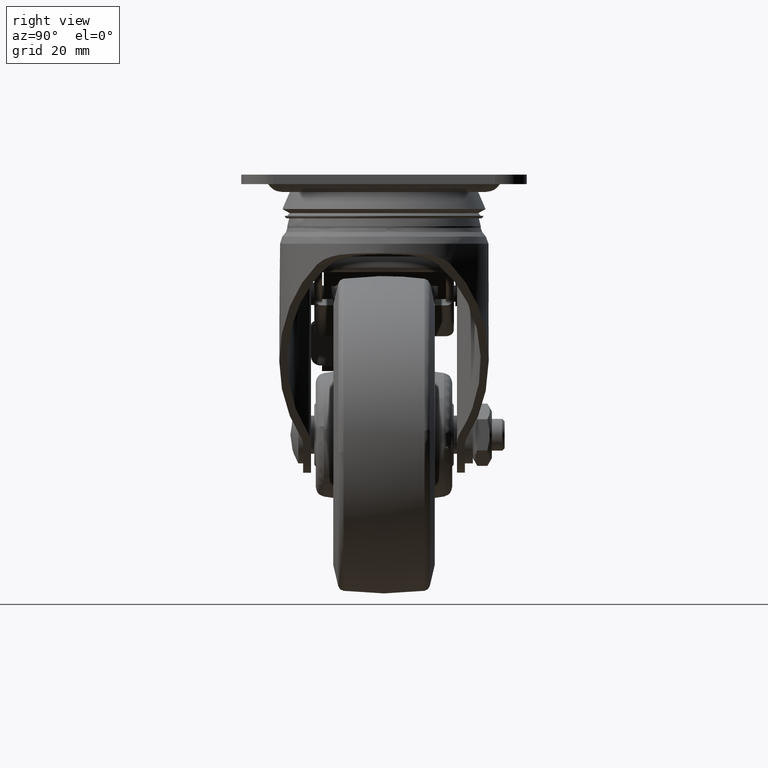
[diagram: clean part render]
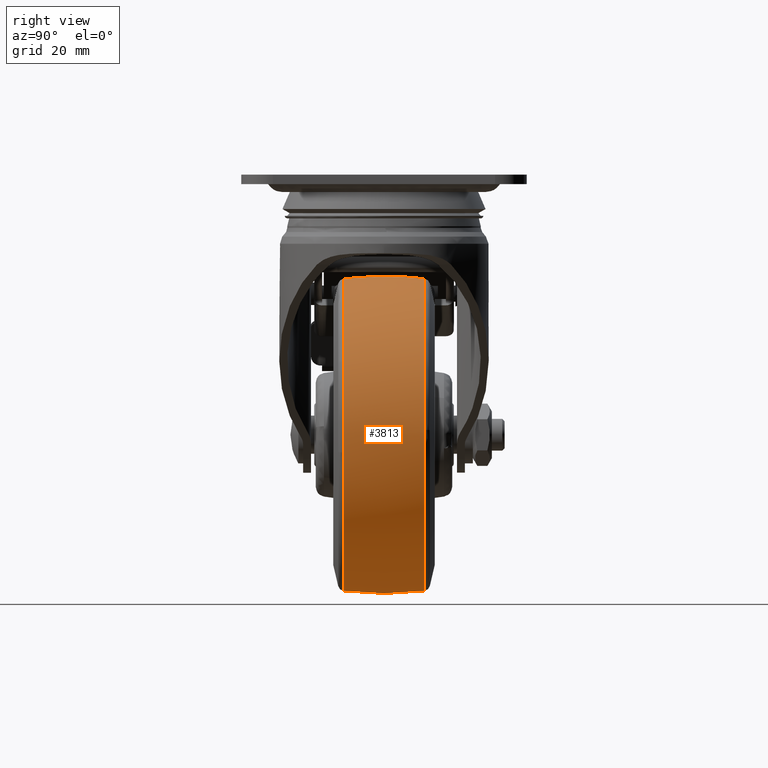
[diagram: same view with one face highlighted and labeled with its STEP entity id]
A machine part, right view. The second image highlights one B-rep face of the part: STEP entity #3813.
In plain terms, the highlighted face is a freeform B-spline surface patch.
Its self-contained STEP definition (entity closure, byte-faithful):
#1713=CARTESIAN_POINT('',(14.159964738544550,12.755098102477019,-80.488308676891052));
#1714=VERTEX_POINT('',#1713);
#1715=CARTESIAN_POINT('',(-35.0,12.755094337561159,-32.816812952274823));
#1716=VERTEX_POINT('',#1715);
#1717=CARTESIAN_POINT('',(14.159964738544550,12.755098102477019,-80.488308676891052));
#1718=CARTESIAN_POINT('',(14.102411787843010,12.755097957589999,-78.615299976082625));
#1719=CARTESIAN_POINT('',(13.781498798500920,12.755097675599989,-74.974289152511673));
#1720=CARTESIAN_POINT('',(12.608955161024840,12.755097224625141,-69.165189786163936));
#1721=CARTESIAN_POINT('',(10.854234440465820,12.755096815862951,-63.914338089447213));
#1722=CARTESIAN_POINT('',(8.515227129443144,12.755096424807970,-58.904798102806247));
#1723=CARTESIAN_POINT('',(5.538893323533679,12.755096032677431,-53.894688923472458));
#1724=CARTESIAN_POINT('',(1.063366380073345,12.755095587277280,-48.226932670077836));
#1725=CARTESIAN_POINT('',(-4.581838673213142,12.755095182104769,-43.104055209906512));
#1726=CARTESIAN_POINT('',(-10.603385661594860,12.755094865024780,-39.128607192664262));
#1727=CARTESIAN_POINT('',(-16.296261336436231,12.755094642568080,-36.370290060114577));
#1728=CARTESIAN_POINT('',(-22.476304271612111,12.755094471652519,-34.288900854245291));
#1729=CARTESIAN_POINT('',(-28.687927383509741,12.755094367989940,-33.078135048424670));
#1730=CARTESIAN_POINT('',(-33.027480135347759,12.755094340753789,-32.816775595635953));
#1731=CARTESIAN_POINT('',(-35.0,12.755094337561159,-32.816812952274823));
#1732=B_SPLINE_CURVE_WITH_KNOTS('',3,(#1717,#1718,#1719,#1720,#1721,#1722,#1723,#1724,#1725,#1726,#1727,#1728,#1729,#1730,#1731),.UNSPECIFIED.,.F.,.U.,(4,1,1,1,1,1,1,1,1,1,1,1,4),(0.000000064938092,5.621682026827671,10.947514529489300,17.752725699117970,22.190915102398709,27.516728133407149,35.209619946766047,43.790054596355702,50.299368023060737,56.808722285949131,62.726306187699890,69.827389975544619,75.744963027510835),.UNSPECIFIED.);
#1733=EDGE_CURVE('',#1714,#1716,#1732,.T.);
#1747=CARTESIAN_POINT('',(-83.993039535116012,12.755110097841291,-86.320818059305793));
#1748=VERTEX_POINT('',#1747);
#1759=CARTESIAN_POINT('',(-83.854250068981514,12.755110888752890,-76.321159086246354));
#1760=VERTEX_POINT('',#1759);
#1761=CARTESIAN_POINT('',(-83.854250068981514,12.755110888752890,-76.321159086246354));
#1762=CARTESIAN_POINT('',(-84.240081558475765,12.755110559595151,-79.638127433234914));
#1763=CARTESIAN_POINT('',(-84.286721615224877,12.755110294122041,-82.994418604876884));
#1764=CARTESIAN_POINT('',(-83.993039535116012,12.755110097841291,-86.320818059305793));
#1765=B_SPLINE_CURVE_WITH_KNOTS('',3,(#1761,#1762,#1763,#1764),.UNSPECIFIED.,.F.,.U.,(4,4),(1.034948E-009,10.017947604102980),.UNSPECIFIED.);
#1766=EDGE_CURVE('',#1760,#1748,#1765,.T.);
#1811=CARTESIAN_POINT('',(-35.0,12.755101787273119,-131.183216089681910));
#1812=VERTEX_POINT('',#1811);
#1813=CARTESIAN_POINT('',(-35.0,12.755101787273119,-131.183216089681910));
#1814=CARTESIAN_POINT('',(-32.538495054805942,12.755101791030700,-131.183314367031700));
#1815=CARTESIAN_POINT('',(-27.102614215108840,12.755101768992340,-130.774482292001490));
#1816=CARTESIAN_POINT('',(-19.401607598718449,12.755101640447590,-128.883006152883410));
#1817=CARTESIAN_POINT('',(-12.316686047557621,12.755101424949890,-125.831733080156700));
#1818=CARTESIAN_POINT('',(-7.234968938037383,12.755101201344930,-122.712296174700700));
#1819=CARTESIAN_POINT('',(-2.846007889643033,12.755100957032360,-119.327873821280310));
#1820=CARTESIAN_POINT('',(0.515506494622578,12.755100726636080,-116.152203124931500));
#1821=CARTESIAN_POINT('',(4.265063271645489,12.755100409217061,-111.795165052718600));
#1822=CARTESIAN_POINT('',(7.738606118042435,12.755100036346960,-106.696106920140000));
#1823=CARTESIAN_POINT('',(11.011066031243971,12.755099540164579,-99.938464667345471));
#1824=CARTESIAN_POINT('',(13.132236741034299,12.755099024890280,-92.947039070878304));
#1825=CARTESIAN_POINT('',(14.114312619397520,12.755098536281849,-86.338580552843013));
#1826=CARTESIAN_POINT('',(14.216735385309880,12.755098239414730,-82.333575987650278));
#1827=CARTESIAN_POINT('',(14.159964738544550,12.755098102477019,-80.488308676891052));
#1828=B_SPLINE_CURVE_WITH_KNOTS('',3,(#1813,#1814,#1815,#1816,#1817,#1818,#1819,#1820,#1821,#1822,#1823,#1824,#1825,#1826,#1827),.UNSPECIFIED.,.F.,.U.,(4,1,1,1,1,1,1,1,1,1,1,1,4),(0.000000062986189,7.384537442255009,16.307609094593101,23.692208923406330,30.461423597501849,34.153729037946093,40.307439302932892,44.307437541823958,51.384356772864308,58.768956830387907,66.768940958783844,73.230432151446863,78.768865136001182),.UNSPECIFIED.);
#1829=EDGE_CURVE('',#1812,#1714,#1828,.T.);
#1831=CARTESIAN_POINT('',(-83.993039535116012,12.755110097841291,-86.320818059305793));
#1832=CARTESIAN_POINT('',(-83.751321217576560,12.755109816587110,-89.064080248502876));
#1833=CARTESIAN_POINT('',(-82.821559003409533,12.755109230143450,-94.415828606136230));
#1834=CARTESIAN_POINT('',(-80.332674432301900,12.755108348381610,-101.519063421449600));
#1835=CARTESIAN_POINT('',(-77.289879099250115,12.755107543415470,-107.337101610841600));
#1836=CARTESIAN_POINT('',(-73.957582331880644,12.755106805422020,-112.201744157433400));
#1837=CARTESIAN_POINT('',(-69.521969601510989,12.755105954639131,-117.296088019240400));
#1838=CARTESIAN_POINT('',(-64.578949840530541,12.755105147692200,-121.491440953539500));
#1839=CARTESIAN_POINT('',(-59.529020231913073,12.755104424879971,-124.711158150223200));
#1840=CARTESIAN_POINT('',(-54.118563034226412,12.755103713997681,-127.493842776424900));
#1841=CARTESIAN_POINT('',(-48.356142138951412,12.755103047521530,-129.505979188837610));
#1842=CARTESIAN_POINT('',(-41.457321389082303,12.755102347996781,-130.882170774873090));
#1843=CARTESIAN_POINT('',(-37.469005219078369,12.755101990688940,-131.183377173355210));
#1844=CARTESIAN_POINT('',(-35.0,12.755101787273119,-131.183216089681910));
#1845=B_SPLINE_CURVE_WITH_KNOTS('',3,(#1831,#1832,#1833,#1834,#1835,#1836,#1837,#1838,#1839,#1840,#1841,#1842,#1843,#1844),.UNSPECIFIED.,.F.,.U.,(4,1,1,1,1,1,1,1,1,1,1,4),(0.000000065315845,8.261645276158319,16.238434407616872,22.505916397799471,27.918719083853588,33.901298505892889,42.732703755672212,47.290877753160601,51.849036260554520,60.965351401450967,65.523520307262558,72.930513122157976),.UNSPECIFIED.);
#1846=EDGE_CURVE('',#1748,#1812,#1845,.T.);
#1892=CARTESIAN_POINT('',(-15.336057112818059,-12.755103824836921,-36.918790818788317));
#1893=VERTEX_POINT('',#1892);
#1894=CARTESIAN_POINT('',(-35.0,-12.755103784708080,-32.816812694142357));
#1895=VERTEX_POINT('',#1894);
#1896=CARTESIAN_POINT('',(-15.336057112818059,-12.755103824836921,-36.918790818788317));
#1897=CARTESIAN_POINT('',(-18.715914881758369,-12.755103814719250,-35.443647227258353));
#1898=CARTESIAN_POINT('',(-25.201428420071121,-12.755103798793609,-33.447318849384182));
#1899=CARTESIAN_POINT('',(-31.944475174425051,-12.755103788276800,-32.816482674087752));
#1900=CARTESIAN_POINT('',(-35.0,-12.755103784708080,-32.816812694142357));
#1901=B_SPLINE_CURVE_WITH_KNOTS('',3,(#1896,#1897,#1898,#1899,#1900),.UNSPECIFIED.,.F.,.U.,(4,1,4),(4.727593E-009,11.063027333888771,20.229562843979249),.UNSPECIFIED.);
#1902=EDGE_CURVE('',#1893,#1895,#1901,.T.);
#1904=CARTESIAN_POINT('',(-83.854246802700885,-12.755103727236071,-76.321114505429563));
#1905=VERTEX_POINT('',#1904);
#1924=CARTESIAN_POINT('',(-35.0,-12.755103842174980,-131.183217789483310));
#1925=VERTEX_POINT('',#1924);
#1926=CARTESIAN_POINT('',(-83.854246802700885,-12.755103727236071,-76.321114505429563));
#1927=CARTESIAN_POINT('',(-84.241393576384340,-12.755103739543570,-79.646872917490640));
#1928=CARTESIAN_POINT('',(-84.309913326905829,-12.755103757587470,-84.749115690125478));
#1929=CARTESIAN_POINT('',(-83.183602955479557,-12.755103783644330,-92.673039918521084));
#1930=CARTESIAN_POINT('',(-81.156101904138126,-12.755103804933640,-99.649451238885476));
#1931=CARTESIAN_POINT('',(-77.945701590888021,-12.755103823122971,-106.280579041114900));
#1932=CARTESIAN_POINT('',(-74.057746657771915,-12.755103837516730,-112.139268369883600));
#1933=CARTESIAN_POINT('',(-69.337734893765472,-12.755103848871260,-117.510792170319310));
#1934=CARTESIAN_POINT('',(-63.312081340465177,-12.755103856688111,-122.468185725214890));
#1935=CARTESIAN_POINT('',(-57.425436042789521,-12.755103859433540,-125.919740350587800));
#1936=CARTESIAN_POINT('',(-52.158073049177190,-12.755103858974531,-128.178704943128590));
#1937=CARTESIAN_POINT('',(-46.693634183180563,-12.755103856336650,-129.907281078325890));
#1938=CARTESIAN_POINT('',(-40.940306670728461,-12.755103850867069,-130.961093226293000));
#1939=CARTESIAN_POINT('',(-36.728077108871602,-12.755103844930369,-131.183233065617490));
#1940=CARTESIAN_POINT('',(-35.0,-12.755103842174980,-131.183217789483310));
#1941=B_SPLINE_CURVE_WITH_KNOTS('',3,(#1926,#1927,#1928,#1929,#1930,#1931,#1932,#1933,#1934,#1935,#1936,#1937,#1938,#1939,#1940),.UNSPECIFIED.,.F.,.U.,(4,1,1,1,1,1,1,1,1,1,1,1,4),(0.000000051722921,10.044513888257940,15.228815547792371,23.977323624653842,31.753763961612609,37.262099221630621,45.038410503961529,53.138885099664222,60.591315691251729,65.451589389474421,70.311870857716059,77.764293083345493,82.948539431696886),.UNSPECIFIED.);
#1942=EDGE_CURVE('',#1905,#1925,#1941,.T.);
#1944=CARTESIAN_POINT('',(13.868986579222801,-12.755103842205539,-87.550653463348098));
#1945=VERTEX_POINT('',#1944);
#1946=CARTESIAN_POINT('',(-35.0,-12.755103842174980,-131.183217789483310));
#1947=CARTESIAN_POINT('',(-32.106079674212587,-12.755103842174989,-131.183447088381800));
#1948=CARTESIAN_POINT('',(-26.318318026868269,-12.755103842175350,-130.671008950767710));
#1949=CARTESIAN_POINT('',(-18.720505794123369,-12.755103842176760,-128.610952626578410));
#1950=CARTESIAN_POINT('',(-12.645093157698399,-12.755103842178629,-125.929021367948390));
#1951=CARTESIAN_POINT('',(-7.240035737906146,-12.755103842180880,-122.765466856371010));
#1952=CARTESIAN_POINT('',(-2.645973723478197,-12.755103842183480,-119.217057744812100));
#1953=CARTESIAN_POINT('',(2.057749826526940,-12.755103842186550,-114.536405677833900));
#1954=CARTESIAN_POINT('',(6.262378990308834,-12.755103842190479,-109.147851801096710));
#1955=CARTESIAN_POINT('',(9.514256994900860,-12.755103842194529,-103.239315602222210));
#1956=CARTESIAN_POINT('',(12.355356955822760,-12.755103842199590,-96.022086618213891));
#1957=CARTESIAN_POINT('',(13.469324499524809,-12.755103842203100,-91.075518018676931));
#1958=CARTESIAN_POINT('',(13.868986579222801,-12.755103842205539,-87.550653463348098));
#1959=B_SPLINE_CURVE_WITH_KNOTS('',3,(#1946,#1947,#1948,#1949,#1950,#1951,#1952,#1953,#1954,#1955,#1956,#1957,#1958),.UNSPECIFIED.,.F.,.U.,(4,1,1,1,1,1,1,1,1,1,4),(0.000000060808716,8.681740627894165,17.363487823652061,23.524735166824779,28.565778215368940,36.127211893189532,40.888167556308566,48.449713718883189,56.571368857771922,61.052274038004832,71.694401948853667),.UNSPECIFIED.);
#1960=EDGE_CURVE('',#1925,#1945,#1959,.T.);
#2008=CARTESIAN_POINT('',(13.868986579222801,-12.755103842205539,-87.550653463348098));
#2009=CARTESIAN_POINT('',(14.052947953678910,-12.755103842297840,-85.931130515852942));
#2010=CARTESIAN_POINT('',(14.285564259702101,-12.755103842400221,-82.266602811644645));
#2011=CARTESIAN_POINT('',(14.012659430964259,-12.755103842192471,-76.639052985415802));
#2012=CARTESIAN_POINT('',(13.071988819000429,-12.755103841599050,-71.167654916821803));
#2013=CARTESIAN_POINT('',(11.420259198473151,-12.755103840590760,-65.360445738877530));
#2014=CARTESIAN_POINT('',(8.993086473383702,-12.755103839133890,-59.642077986247152));
#2015=CARTESIAN_POINT('',(5.194767191986032,-12.755103836877581,-53.349498908026717));
#2016=CARTESIAN_POINT('',(0.719993041525103,-12.755103834236980,-47.924539524292051));
#2017=CARTESIAN_POINT('',(-4.019497934260847,-12.755103831453420,-43.666775343750480));
#2018=CARTESIAN_POINT('',(-9.197990074300142,-12.755103828420040,-39.969071826762850));
#2019=CARTESIAN_POINT('',(-12.870871375085571,-12.755103826275111,-37.993869449137890));
#2020=CARTESIAN_POINT('',(-15.336057112818059,-12.755103824836921,-36.918790818788317));
#2021=B_SPLINE_CURVE_WITH_KNOTS('',3,(#2008,#2009,#2010,#2011,#2012,#2013,#2014,#2015,#2016,#2017,#2018,#2019,#2020),.UNSPECIFIED.,.F.,.U.,(4,1,1,1,1,1,1,1,1,1,4),(0.000000053298280,4.889820381906411,11.002108095171220,16.869916724611880,21.515259213323880,29.094499632539371,35.451244496527430,43.519471141606317,50.120759700111847,54.521628980644543,62.589819710659590),.UNSPECIFIED.);
#2022=EDGE_CURVE('',#1945,#1893,#2021,.T.);
#3734=CARTESIAN_POINT('',(-83.681530261244617,-14.041158185509362,-76.341192586417193));
#3735=CARTESIAN_POINT('',(-84.665582081654165,-7.055527867899111,-76.226804758680956));
#3736=CARTESIAN_POINT('',(-84.665582081654179,5.878113E-015,-76.226804758680956));
#3737=CARTESIAN_POINT('',(-84.665582081654236,7.055530961880491,-76.226804758680956));
#3738=CARTESIAN_POINT('',(-83.681529402469110,14.041164281821571,-76.341192686242678));
#3739=CARTESIAN_POINT('',(-84.009322171245557,-14.041158185509360,-79.161109986157456));
#3740=CARTESIAN_POINT('',(-85.0,-7.055527867899112,-79.103724163816821));
#3741=CARTESIAN_POINT('',(-84.999999999999986,5.878113E-015,-79.103724163816821));
#3742=CARTESIAN_POINT('',(-84.999999999999986,7.055530961880490,-79.103724163816807));
#3743=CARTESIAN_POINT('',(-84.009321306687553,14.041164281821571,-79.161110036237687));
#3744=CARTESIAN_POINT('',(-84.009322171245586,-14.041158185509362,-82.000014999999919));
#3745=CARTESIAN_POINT('',(-85.0,-7.055527867899111,-82.000014999999919));
#3746=CARTESIAN_POINT('',(-85.0,5.878113E-015,-82.000014999999905));
#3747=CARTESIAN_POINT('',(-84.999999999999986,7.055530961880490,-82.000014999999905));
#3748=CARTESIAN_POINT('',(-84.009321306687568,14.041164281821567,-82.000014999999905));
#3749=CARTESIAN_POINT('',(-84.009322171245600,-14.041158185509365,-131.009337171245510));
#3750=CARTESIAN_POINT('',(-85.000000000000014,-7.055527867899113,-132.000014999999910));
#3751=CARTESIAN_POINT('',(-85.0,5.878113E-015,-132.000014999999910));
#3752=CARTESIAN_POINT('',(-85.0,7.055530961880492,-132.000014999999910));
#3753=CARTESIAN_POINT('',(-84.009321306687582,14.041164281821571,-131.009336306687490));
#3754=CARTESIAN_POINT('',(-35.000000000000007,-14.041158185509362,-131.009337171245450));
#3755=CARTESIAN_POINT('',(-35.0,-7.055527867899111,-132.000014999999910));
#3756=CARTESIAN_POINT('',(-35.0,5.878113E-015,-132.000014999999910));
#3757=CARTESIAN_POINT('',(-34.999999999999993,7.055530961880490,-132.000014999999910));
#3758=CARTESIAN_POINT('',(-34.999999999999993,14.041164281821567,-131.009336306687400));
#3759=CARTESIAN_POINT('',(14.009322171245591,-14.041158185509365,-131.009337171245510));
#3760=CARTESIAN_POINT('',(15.0,-7.055527867899113,-132.000014999999910));
#3761=CARTESIAN_POINT('',(15.000000000000009,5.878113E-015,-132.000014999999910));
#3762=CARTESIAN_POINT('',(15.000000000000007,7.055530961880492,-132.000014999999910));
#3763=CARTESIAN_POINT('',(14.009321306687580,14.041164281821571,-131.009336306687490));
#3764=CARTESIAN_POINT('',(14.009322171245586,-14.041158185509362,-82.000014999999919));
#3765=CARTESIAN_POINT('',(15.0,-7.055527867899111,-82.000014999999919));
#3766=CARTESIAN_POINT('',(15.0,5.878113E-015,-82.000014999999905));
#3767=CARTESIAN_POINT('',(15.000000000000004,7.055530961880490,-82.000014999999905));
#3768=CARTESIAN_POINT('',(14.009321306687575,14.041164281821567,-82.000014999999905));
#3769=CARTESIAN_POINT('',(14.009322171245591,-14.041158185509365,-32.990692828754298));
#3770=CARTESIAN_POINT('',(15.0,-7.055527867899113,-32.000014999999898));
#3771=CARTESIAN_POINT('',(15.000000000000009,5.878113E-015,-32.000014999999884));
#3772=CARTESIAN_POINT('',(15.000000000000007,7.055530961880492,-32.000014999999898));
#3773=CARTESIAN_POINT('',(14.009321306687580,14.041164281821571,-32.990693693312316));
#3774=CARTESIAN_POINT('',(-35.000000000000007,-14.041158185509362,-32.990692828754305));
#3775=CARTESIAN_POINT('',(-35.0,-7.055527867899111,-32.000014999999891));
#3776=CARTESIAN_POINT('',(-35.0,5.878113E-015,-32.000014999999898));
#3777=CARTESIAN_POINT('',(-34.999999999999993,7.055530961880490,-32.000014999999891));
#3778=CARTESIAN_POINT('',(-34.999999999999993,14.041164281821567,-32.990693693312323));
#3786=(BOUNDED_SURFACE()B_SPLINE_SURFACE(2,2,((#3734,#3739,#3744,#3749,#3754,#3759,#3764,#3769,#3774),(#3735,#3740,#3745,#3750,#3755,#3760,#3765,#3770,#3775),(#3736,#3741,#3746,#3751,#3756,#3761,#3766,#3771,#3776),(#3737,#3742,#3747,#3752,#3757,#3762,#3767,#3772,#3777),(#3738,#3743,#3748,#3753,#3758,#3763,#3768,#3773,#3778)),.UNSPECIFIED.,.F.,.F.,.U.)B_SPLINE_SURFACE_WITH_KNOTS((3,2,3),(3,2,2,2,3),(0.0,14.306609680341969,28.613225517995321),(0.0,6.627415615382596,89.470128090001623,172.312840564620590,255.155553039239690),.UNSPECIFIED.)GEOMETRIC_REPRESENTATION_ITEM()RATIONAL_B_SPLINE_SURFACE(((0.926294851587823,0.945348033275568,0.968030391526330,0.684500854242937,0.968030391526330,0.684500854242937,0.968030391526330,0.684500854242937,0.968030391526330),(0.939131627046018,0.958448851456953,0.981445546270450,0.693986801133171,0.981445546270450,0.693986801133171,0.981445546270450,0.693986801133171,0.981445546270450),(0.956886126402807,0.976568547383107,1.0,0.707106781186548,1.0,0.707106781186548,1.0,0.707106781186548,1.0),(0.939131619404796,0.958448843658557,0.981445538284942,0.693986795486564,0.981445538284942,0.693986795486564,0.981445538284942,0.693986795486564,0.981445538284942),(0.926294840538382,0.945348021998849,0.968030379979041,0.684500846077770,0.968030379979041,0.684500846077770,0.968030379979041,0.684500846077770,0.968030379979041)))REPRESENTATION_ITEM('')SURFACE());
#3787=ORIENTED_EDGE('',*,*,#1766,.T.);
#3788=ORIENTED_EDGE('',*,*,#1846,.T.);
#3789=ORIENTED_EDGE('',*,*,#1829,.T.);
#3790=ORIENTED_EDGE('',*,*,#1733,.T.);
#3791=CARTESIAN_POINT('',(-35.0,-12.755103784708080,-32.816812694142357));
#3792=CARTESIAN_POINT('',(-34.999999999999972,-6.940954481954803,-32.068489056275901));
#3793=CARTESIAN_POINT('',(-34.999999999999993,1.611809569406048,-31.727399493107288));
#3794=CARTESIAN_POINT('',(-35.000000000000021,10.112290442151179,-32.476956342300383));
#3795=CARTESIAN_POINT('',(-35.0,12.755094337561159,-32.816812952274823));
#3796=B_SPLINE_CURVE_WITH_KNOTS('',3,(#3791,#3792,#3793,#3794,#3795),.UNSPECIFIED.,.F.,.U.,(4,1,4),(1.509726E-009,17.586180216963449,25.579898512539341),.UNSPECIFIED.);
#3797=EDGE_CURVE('',#1895,#1716,#3796,.T.);
#3798=ORIENTED_EDGE('',*,*,#3797,.F.);
#3799=ORIENTED_EDGE('',*,*,#1902,.F.);
#3800=ORIENTED_EDGE('',*,*,#2022,.F.);
#3801=ORIENTED_EDGE('',*,*,#1960,.F.);
#3802=ORIENTED_EDGE('',*,*,#1942,.F.);
#3803=CARTESIAN_POINT('',(-83.854246802700885,-12.755103727236071,-76.321114505429563));
#3804=CARTESIAN_POINT('',(-84.259388712774467,-9.583738477615334,-76.274025712147008));
#3805=CARTESIAN_POINT('',(-84.936502829484553,-1.074542611158275,-76.195331816025060));
#3806=CARTESIAN_POINT('',(-84.529856222956568,7.469516255712433,-76.242616165630395));
#3807=CARTESIAN_POINT('',(-83.854250068981514,12.755110888752890,-76.321159086246354));
#3808=B_SPLINE_CURVE_WITH_KNOTS('',3,(#3803,#3804,#3805,#3806,#3807),.UNSPECIFIED.,.F.,.U.,(4,1,4),(1.509445E-009,9.592468214332452,25.579915142944440),.UNSPECIFIED.);
#3809=EDGE_CURVE('',#1905,#1760,#3808,.T.);
#3810=ORIENTED_EDGE('',*,*,#3809,.T.);
#3811=EDGE_LOOP('',(#3787,#3788,#3789,#3790,#3798,#3799,#3800,#3801,#3802,#3810));
#3812=FACE_OUTER_BOUND('',#3811,.T.);
#3813=ADVANCED_FACE('',(#3812),#3786,.T.);